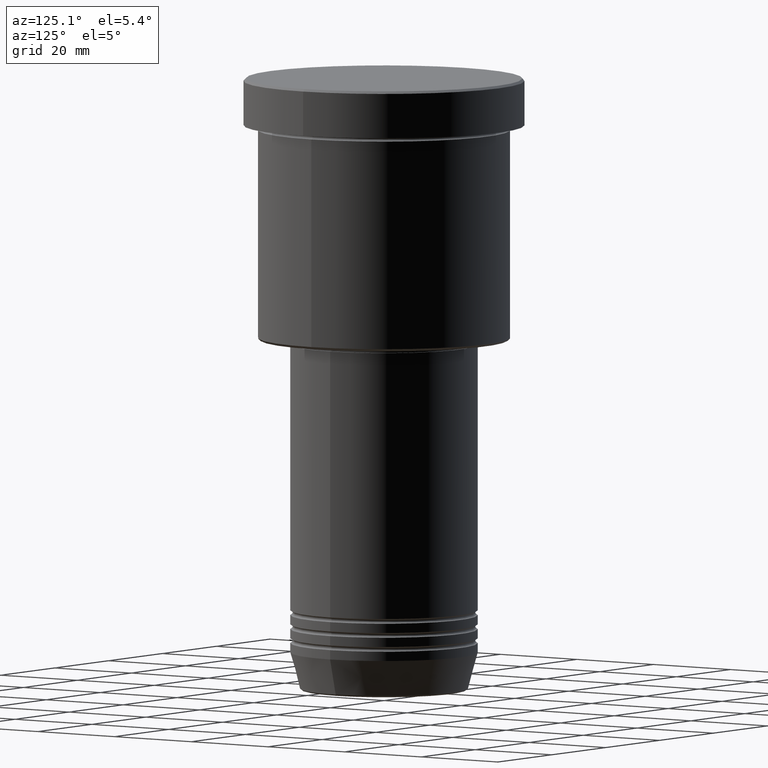
[diagram: clean part render]
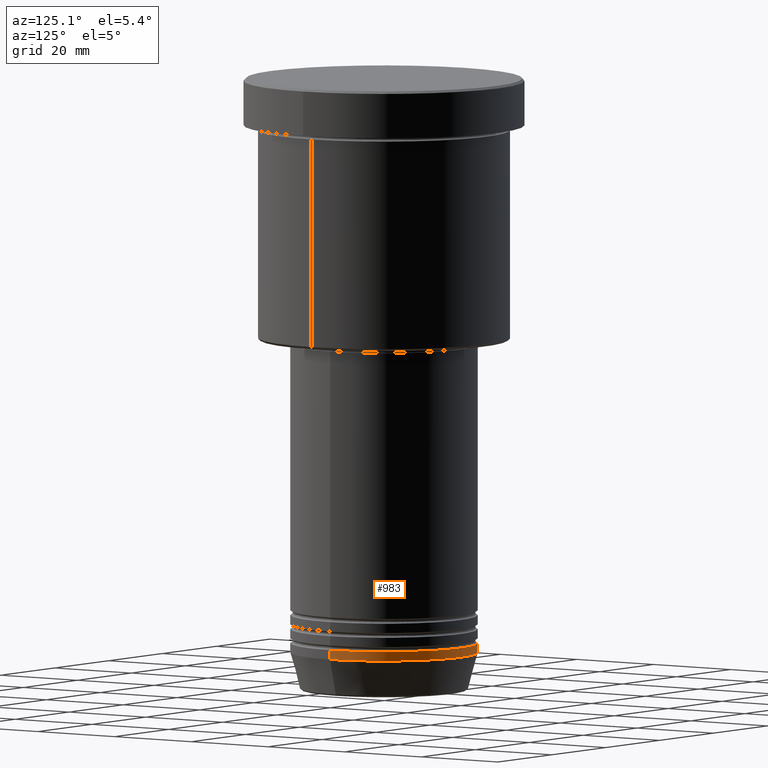
[diagram: same view with one face highlighted and labeled with its STEP entity id]
A machine part, auxiliary view. The second image highlights one B-rep face of the part: STEP entity #983.
In plain terms, the highlighted cylindrical surface (partial cylindrical patch) has radius 20 mm, axis along (-0, -0, 1).
Its self-contained STEP definition (entity closure, byte-faithful):
#55 = DIRECTION ( 'NONE',  ( 1.000000000000000000, 0.000000000000000000, 0.000000000000000000 ) ) ;
#60 = ORIENTED_EDGE ( 'NONE', *, *, #1040, .F. ) ;
#93 = CIRCLE ( 'NONE', #762, 20.00000000000000000 ) ;
#99 = DIRECTION ( 'NONE',  ( 1.000000000000000000, 0.000000000000000000, 0.000000000000000000 ) ) ;
#105 = EDGE_CURVE ( 'NONE', #1076, #958, #816, .T. ) ;
#197 = DIRECTION ( 'NONE',  ( -0.000000000000000000, -0.000000000000000000, 1.000000000000000000 ) ) ;
#213 = EDGE_CURVE ( 'NONE', #1042, #329, #93, .T. ) ;
#215 = CARTESIAN_POINT ( 'NONE',  ( -20.00000000000000000, 2.449293598294706513E-15, 0.000000000000000000 ) ) ;
#236 = CYLINDRICAL_SURFACE ( 'NONE', #392, 20.00000000000000000 ) ;
#242 = CARTESIAN_POINT ( 'NONE',  ( -20.00000000000000000, 2.449293598294706513E-15, -121.0000000000000000 ) ) ;
#300 = DIRECTION ( 'NONE',  ( -0.000000000000000000, -0.000000000000000000, 1.000000000000000000 ) ) ;
#329 = VERTEX_POINT ( 'NONE', #242 ) ;
#392 = AXIS2_PLACEMENT_3D ( 'NONE', #854, #300, #55 ) ;
#409 = CARTESIAN_POINT ( 'NONE',  ( 20.00000000000000000, 0.000000000000000000, -121.0000000000000000 ) ) ;
#418 = CARTESIAN_POINT ( 'NONE',  ( 20.00000000000000000, 0.000000000000000000, 0.000000000000000000 ) ) ;
#442 = CARTESIAN_POINT ( 'NONE',  ( 0.000000000000000000, 0.000000000000000000, -121.0000000000000000 ) ) ;
#459 = CARTESIAN_POINT ( 'NONE',  ( 0.000000000000000000, 0.000000000000000000, -123.0000000000000000 ) ) ;
#475 = DIRECTION ( 'NONE',  ( -0.000000000000000000, -0.000000000000000000, 1.000000000000000000 ) ) ;
#490 = DIRECTION ( 'NONE',  ( -0.000000000000000000, -0.000000000000000000, 1.000000000000000000 ) ) ;
#509 = VECTOR ( 'NONE', #490, 1000.000000000000000 ) ;
#538 = AXIS2_PLACEMENT_3D ( 'NONE', #459, #637, #99 ) ;
#546 = ORIENTED_EDGE ( 'NONE', *, *, #105, .T. ) ;
#637 = DIRECTION ( 'NONE',  ( -0.000000000000000000, -0.000000000000000000, 1.000000000000000000 ) ) ;
#646 = LINE ( 'NONE', #215, #974 ) ;
#696 = EDGE_CURVE ( 'NONE', #958, #329, #646, .T. ) ;
#718 = DIRECTION ( 'NONE',  ( 1.000000000000000000, 0.000000000000000000, 0.000000000000000000 ) ) ;
#760 = CARTESIAN_POINT ( 'NONE',  ( -20.00000000000000000, 2.449293598294706513E-15, -123.0000000000000000 ) ) ;
#762 = AXIS2_PLACEMENT_3D ( 'NONE', #442, #197, #718 ) ;
#816 = CIRCLE ( 'NONE', #538, 20.00000000000000000 ) ;
#850 = ORIENTED_EDGE ( 'NONE', *, *, #696, .T. ) ;
#854 = CARTESIAN_POINT ( 'NONE',  ( 0.000000000000000000, 0.000000000000000000, 0.000000000000000000 ) ) ;
#866 = ORIENTED_EDGE ( 'NONE', *, *, #213, .F. ) ;
#871 = EDGE_LOOP ( 'NONE', ( #546, #850, #866, #60 ) ) ;
#958 = VERTEX_POINT ( 'NONE', #760 ) ;
#972 = CARTESIAN_POINT ( 'NONE',  ( 20.00000000000000000, 0.000000000000000000, -123.0000000000000000 ) ) ;
#974 = VECTOR ( 'NONE', #475, 1000.000000000000000 ) ;
#983 = ADVANCED_FACE ( 'NONE', ( #1135 ), #236, .T. ) ;
#1040 = EDGE_CURVE ( 'NONE', #1076, #1042, #1058, .T. ) ;
#1042 = VERTEX_POINT ( 'NONE', #409 ) ;
#1058 = LINE ( 'NONE', #418, #509 ) ;
#1076 = VERTEX_POINT ( 'NONE', #972 ) ;
#1135 = FACE_OUTER_BOUND ( 'NONE', #871, .T. ) ;